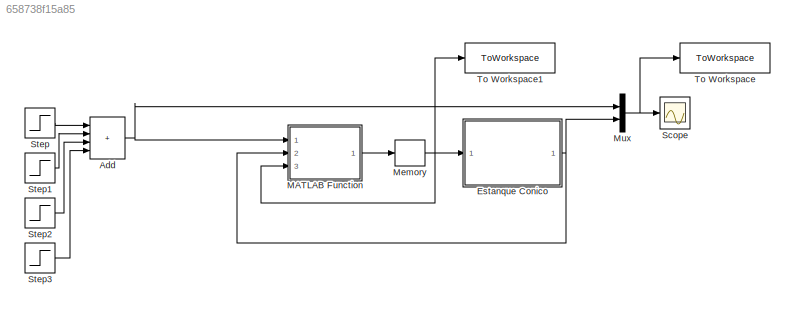
MODEL slx_658738f15a85
KIND model
CONFIG AbsTol = auto
CONFIG EnableMultiTasking = off
CONFIG FixedStep = auto
CONFIG MaxStep = auto
CONFIG MinStep = auto
CONFIG RelTol = 1e-3
CONFIG SampleTimeConstraint = Unconstrained
CONFIG Solver = ode45
CONFIG SolverName = ode45
CONFIG StartTime = 0.0
CONFIG StopTime = 2000
BLOCK [Sum] Add
  IconShape = rectangular
  Inputs = ++++
  Ports = [4, 1]
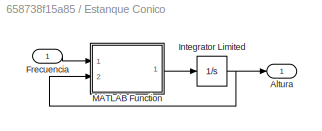
BLOCK [SubSystem] Estanque Conico
  Ports = [1, 1]
  RequestExecContextInheritance = off
BLOCK [Outport] Estanque Conico/Altura
BLOCK [Inport] Estanque Conico/Frecuencia
BLOCK [Integrator] Estanque Conico/Integrator Limited
  InitialCondition = 20
  LimitOutput = on
  LowerSaturationLimit = 0
  Ports = [1, 1]
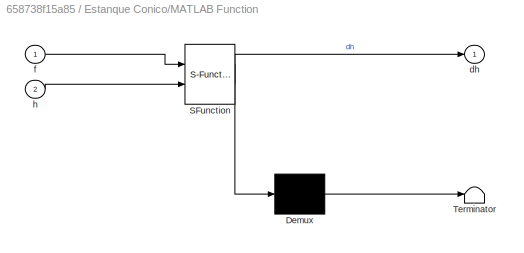
BLOCK [SubSystem] Estanque Conico/MATLAB Function
  ErrorFcn = Stateflow.Translate.translate
  PermitHierarchicalResolution = ExplicitOnly
  Ports = [2, 1]
  RequestExecContextInheritance = off
  SFBlockType = MATLAB Function
  TreatAsAtomicUnit = on
BLOCK [Demux] Estanque Conico/MATLAB Function/ Demux 
  Outputs = 1
  Ports = [1, 1]
BLOCK [S-Function] Estanque Conico/MATLAB Function/ SFunction 
  EnableBusSupport = on
  FunctionName = sf_sfun
  PortCounts = [2 2]
  Ports = [2, 2]
  SFcnIsStateOwnerBlock = off
  SFunctionDeploymentMode = off
  Tag = Stateflow S-Function 2
BLOCK [Terminator] Estanque Conico/MATLAB Function/ Terminator 
BLOCK [Outport] Estanque Conico/MATLAB Function/dh
BLOCK [Inport] Estanque Conico/MATLAB Function/f
BLOCK [Inport] Estanque Conico/MATLAB Function/h
  Port = 2
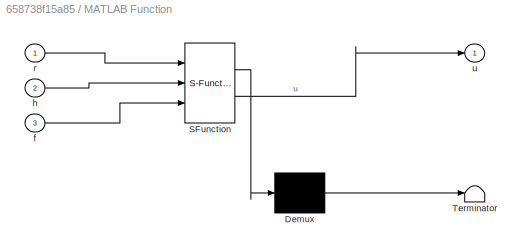
BLOCK [SubSystem] MATLAB Function
  ErrorFcn = Stateflow.Translate.translate
  MinAlgLoopOccurrences = on
  PermitHierarchicalResolution = ExplicitOnly
  Ports = [3, 1]
  RequestExecContextInheritance = off
  SFBlockType = MATLAB Function
  SystemSampleTime = 10
  TreatAsAtomicUnit = on
BLOCK [Demux] MATLAB Function/ Demux 
  Outputs = 1
  Ports = [1, 1]
BLOCK [S-Function] MATLAB Function/ SFunction 
  EnableBusSupport = on
  FunctionName = sf_sfun
  PortCounts = [3 2]
  Ports = [3, 2]
  SFcnIsStateOwnerBlock = off
  SFunctionDeploymentMode = off
  Tag = Stateflow S-Function 1
BLOCK [Terminator] MATLAB Function/ Terminator 
BLOCK [Inport] MATLAB Function/f
  Port = 3
BLOCK [Inport] MATLAB Function/h
  Port = 2
BLOCK [Inport] MATLAB Function/r
BLOCK [Outport] MATLAB Function/u
BLOCK [Memory] Memory
BLOCK [Mux] Mux
  DisplayOption = bar
  Inputs = 2
  Ports = [2, 1]
BLOCK [Scope] Scope
  Floating = off
  NumInputPorts = 1
  Ports = [1]
  ScopeSpecificationString = Simulink.scopes.TimeScopeBlockCfg('CurrentConfiguration', extmgr.ConfigurationSet(extmgr.Configuration('Core','General UI',true),extmgr.Configuration('Core','Source UI',true),extmgr.Configuration('Sources','WiredSimulink',true,'DataLoggingVariableName','ScopeData1'),extmgr.Configuration('Visuals','Time Domain',true,'SerializedDisplays',{struct('MinYLimReal','16.875','MaxYLimReal','48.125','YLabelR...<+1441ch>
BLOCK [Step] Step
  After = 25
  SampleTime = 0
  Time = 0
BLOCK [Step] Step1
  After = 10
  SampleTime = 0
  Time = tescalon
BLOCK [Step] Step2
  After = -5
  SampleTime = 0
  Time = 2*tescalon
BLOCK [Step] Step3
  After = 15
  SampleTime = 0
  Time = 4*tescalon
BLOCK [ToWorkspace] To Workspace
  FixptAsFi = on
  MaxDataPoints = inf
  Ports = [1]
  SampleTime = -1
  VariableName = h
BLOCK [ToWorkspace] To Workspace1
  FixptAsFi = on
  MaxDataPoints = inf
  Ports = [1]
  SampleTime = -1
  VariableName = f
NET Add:1 -> MATLAB Function:1, Mux:1
LINE Estanque Conico/Frecuencia:1 -> Estanque Conico/MATLAB Function:1
NET Estanque Conico/Integrator Limited:1 -> Estanque Conico/Altura:1, Estanque Conico/MATLAB Function:2
LINE Estanque Conico/MATLAB Function:1 -> Estanque Conico/Integrator Limited:1
NET Estanque Conico:1 -> MATLAB Function:2, Mux:2
LINE MATLAB Function:1 -> Memory:1
NET Memory:1 -> Estanque Conico:1, MATLAB Function:3, To Workspace1:1
NET Mux:1 -> Scope:1, To Workspace:1
LINE Step1:1 -> Add:2
LINE Step2:1 -> Add:3
LINE Step3:1 -> Add:4
LINE Step:1 -> Add:1
note: NET lines group one-source signal fan-out (src -> all destinations, sorted); 1:1 wires keep LINE
CHART MATLAB Function states=1 transitions=1
  STATE_LABEL 'eML_blk_kernel()'
  STATE_LABEL "SCRIPT:\nfunction u = Controlador(r,h,f)\n\n% coder.extrinsic('ControladorOptEuler');\ncoder.extrinsic('ControladorOptNN');\nu=0;\n% u=ControladorOptEuler(r,h,f);\nu=ControladorOptNN(r,h,f);\nend\n\n"
CHART Estanque Conico/MATLAB Function states=1 transitions=1
  STATE_LABEL 'eML_blk_kernel()'
  STATE_LABEL 'SCRIPT:\nfunction dh = fcn(f,h)\nFin=5.43*f+78.23;\nFout=20.21*sqrt(h);\nNum=Fin-Fout;\nDen=0.63*h^2+11.4*h+17.1;\ndh = real(Num/Den);\n'
CHART  states=0 transitions=0
CHART  states=0 transitions=0
